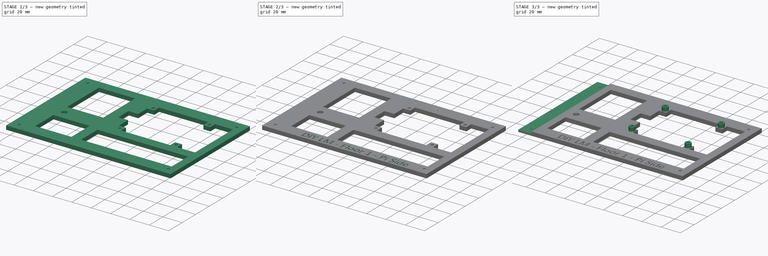
[diagram: build sequence overview — one tinted view per stage of 3, left to right]
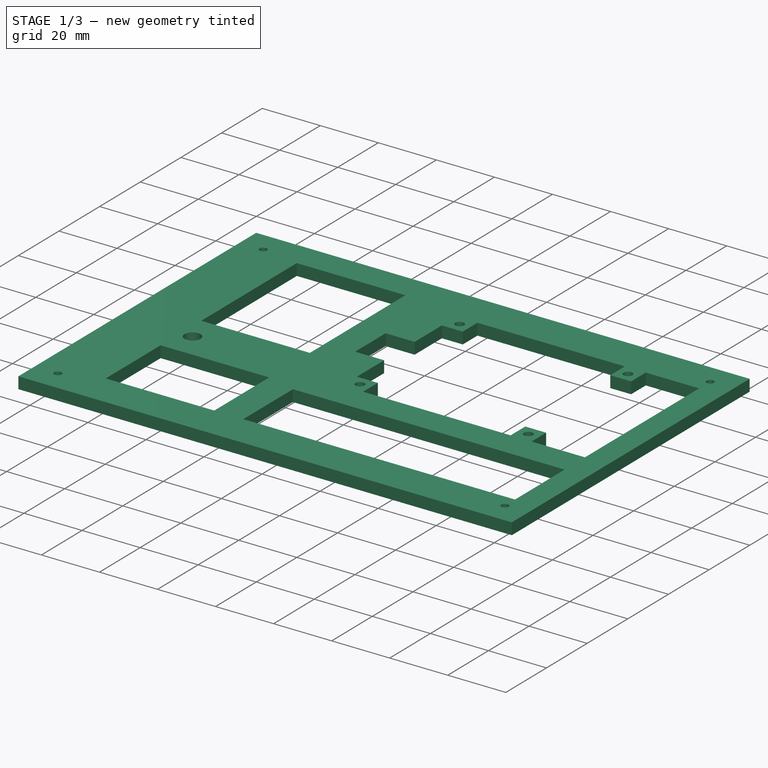
[diagram: stage 1 of 3 — iso view after this stage's code; geometry added in this stage tinted green]
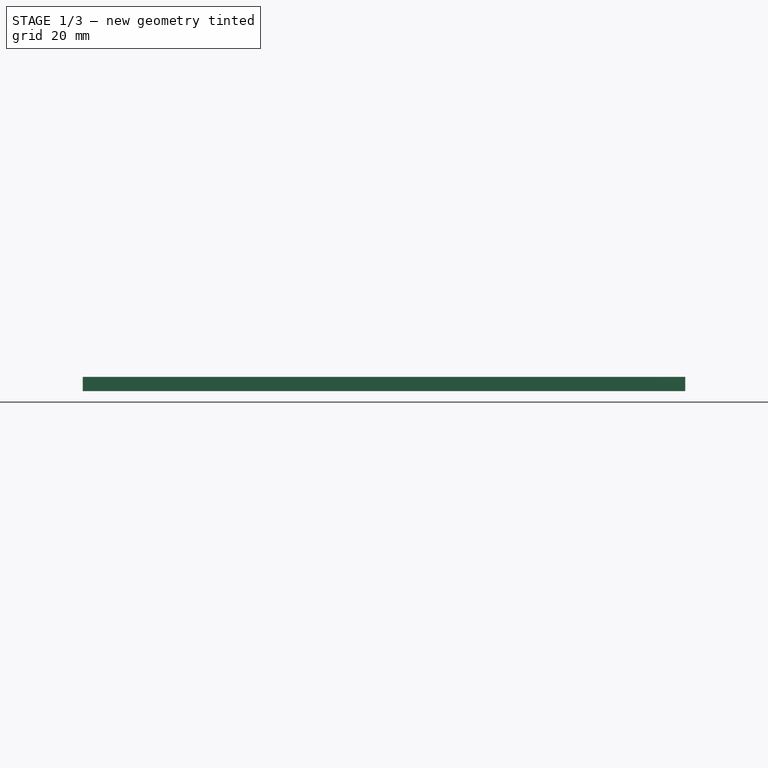
[diagram: stage 1 of 3 — front view after this stage's code; geometry added in this stage tinted green]
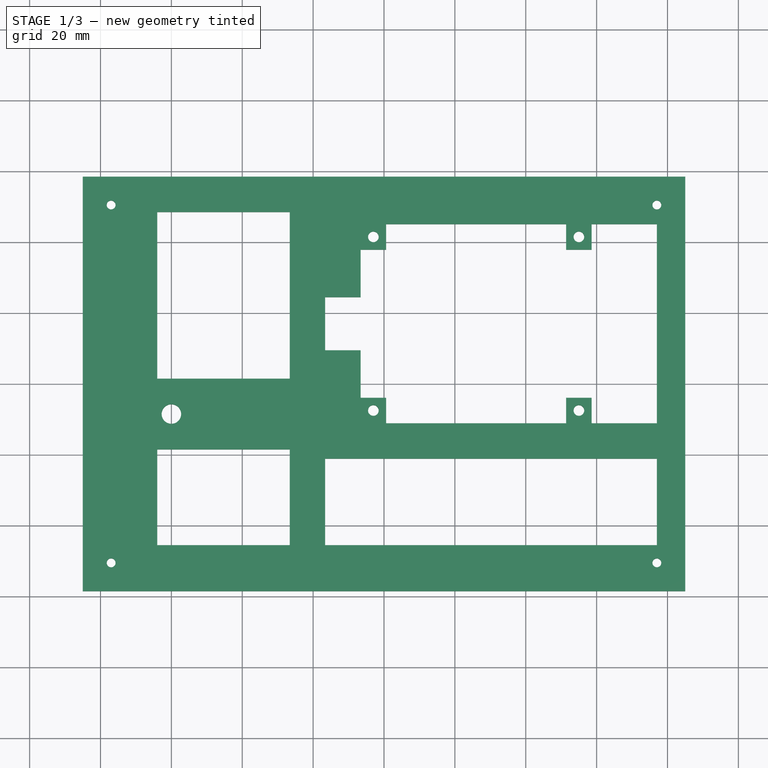
[diagram: stage 1 of 3 — top view after this stage's code; geometry added in this stage tinted green]
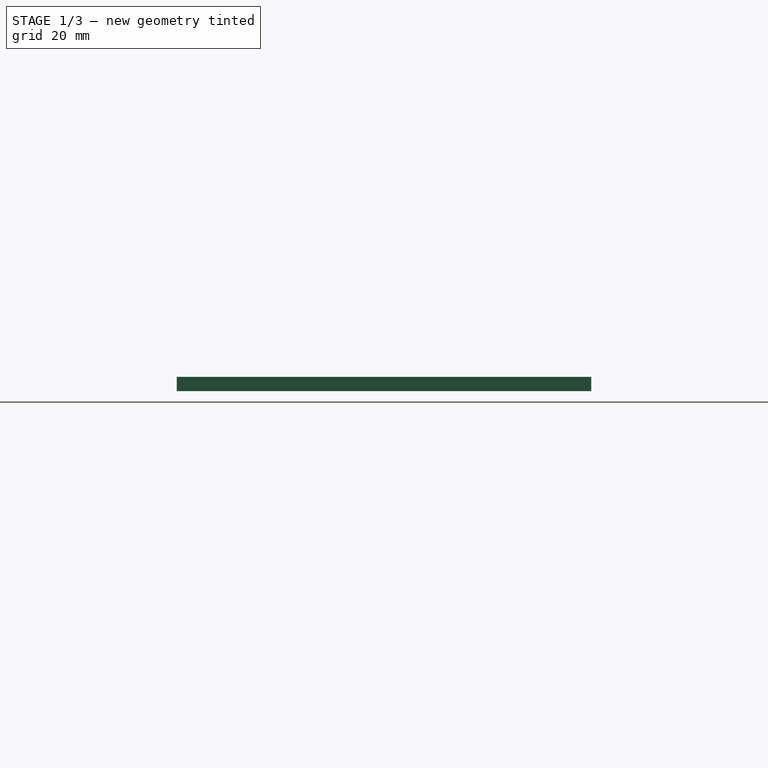
[diagram: stage 1 of 3 — right view after this stage's code; geometry added in this stage tinted green]
FCSTD DOCUMENT  (FreeCAD 1.0R39109 (Git))
Label: Base Layer - Pi Side - Floor
License: All rights reserved
LicenseURL: http://en.wikipedia.org/wiki/All_rights_reserved
objects: Sketcher::SketchObject×4, PartDesign::Pocket×3, PartDesign::Pad×2, Part::Part2DObjectPython×2, App::Link×1, PartDesign::Body×1, App::Part×1
note: 26 computed .brp shape members not serialized (recipe doc carries the construction recipe); baked Part::Feature solids carry a one-line shape summary decoded from their .brp
EXTERNAL_REF file=../Master Document.FCStd obj=Spreadsheet

FEATURE [Sketcher::SketchObject] Sketch
  ArcFitTolerance = 1e-06
  AttachmentSupport = -> [XY_Plane]
  FullyConstrained = true
  MakeInternals = false
  MapMode = 5
  expr: Constraints[10] = 0.5 * <<Monitor Chassis Parameters>>.GSMonitorFloorLength_PiSide
  expr: Constraints[11] = 0.5 * <<Monitor Chassis Parameters>>.GSMonitorFloorWidth_PiSide
  expr: Constraints[8] = <<Monitor Chassis Parameters>>.GSMonitorFloorLength_PiSide
  expr: Constraints[9] = <<Monitor Chassis Parameters>>.GSMonitorFloorWidth_PiSide
  sketch-geometry (4):
    g0: LineSegment StartX=-85 StartY=58.5 StartZ=0 EndX=-85 EndY=-58.5 EndZ=0
    g1: LineSegment StartX=-85 StartY=-58.5 StartZ=0 EndX=85 EndY=-58.5 EndZ=0
    g2: LineSegment StartX=85 StartY=-58.5 StartZ=0 EndX=85 EndY=58.5 EndZ=0
    g3: LineSegment StartX=85 StartY=58.5 StartZ=0 EndX=-85 EndY=58.5 EndZ=0
  constraints (12):
    c: Coincident(g0,g1)
    c: Coincident(g1,g2)
    c: Coincident(g2,g3)
    c: Coincident(g3,g0)
    c: Vertical(g0)
    c: Vertical(g2)
    c: Horizontal(g1)
    c: Horizontal(g3)
    c: DistanceX(g0,g2) = 170
    c: DistanceY(g0,g0) = 117
    c: DistanceX(g0,g-1) = 85
    c: DistanceY(g-1,g0) = 58.5
FEATURE [App::Link] Link  label="Monitor Chassis Parameters"
  LinkedObject = -> <external ../Master Document.FCStd>#Spreadsheet
FEATURE [PartDesign::Pad] Pad  label="Level 1 Floor - Pi Side Pad"
  Direction = (0,0,1)
  Length = 4
  Length2 = 10
  Profile = -> Sketch
  ReferenceAxis = -> Sketch [N_Axis]
  Suppressed = false
  Type = 0
  expr: Length = <<Monitor Chassis Parameters>>.GSMonitorFloorThickness
FEATURE [Sketcher::SketchObject] Sketch001
  ArcFitTolerance = 1e-06
  AttachmentSupport = -> [Pad]
  ExternalGeometry = -> [Sketch,Pad]
  FullyConstrained = true
  MakeInternals = false
  MapMode = 5
  Placement = pos=(0,0,4) rot=(0,0,1;0rad)
  expr: Constraints[0] = <<Monitor Chassis Parameters>>.GSMonitorFloorMountingScrewDiameter
  expr: Constraints[104] = 1.3 * <<Monitor Chassis Parameters>>.GSMonitorFloorRibMinimumWidth
  expr: Constraints[106] = <<Monitor Chassis Parameters>>.GSMonitorFloorRibMinimumWidth
  expr: Constraints[107] = 10
  expr: Constraints[109] = <<Monitor Chassis Parameters>>.GSMonitorFloorPiNearSideOffset
  expr: Constraints[111] = 17
  expr: Constraints[112] = 17
  expr: Constraints[113] = <<Monitor Chassis Parameters>>.GsPi5NetworkSideBoardLength
  expr: Constraints[117] = <<Monitor Chassis Parameters>>.GSMonitorFloorRibMinimumWidth
  expr: Constraints[118] = <<Monitor Chassis Parameters>>.GSMonitorFloorRibMinimumWidth
  expr: Constraints[119] = <<Monitor Chassis Parameters>>.GSMonitorFloorRibMinimumWidth
  expr: Constraints[122] = <<Monitor Chassis Parameters>>.GSMonitorFloorRibMinimumWidth
  expr: Constraints[4] = <<Monitor Chassis Parameters>>.GSMonitorFloorMountHoleEdgeOffset
  expr: Constraints[51] = <<Monitor Chassis Parameters>>.GSMonitorFloorCameraMountHoleDiameter
  expr: Constraints[52] = <<Monitor Chassis Parameters>>.GSMonitorFloorCamera2_MountHoleFrontOffset
  expr: Constraints[5] = <<Monitor Chassis Parameters>>.GSMonitorFloorMountHoleSideOffset
  expr: Constraints[60] = <<Monitor Chassis Parameters>>.GsPi5MountingHoleDiameter
  expr: Constraints[61] = <<Monitor Chassis Parameters>>.GsPi5MountingHoleDiameter
  expr: Constraints[62] = <<Monitor Chassis Parameters>>.GsPi5MountingHoleDiameter
  expr: Constraints[63] = <<Monitor Chassis Parameters>>.GsPi5MountingHoleDiameter
  expr: Constraints[67] = <<Monitor Chassis Parameters>>.GSPi5MountingHoleCenterWidth
  expr: Constraints[6] = <<Monitor Chassis Parameters>>.GSMonitorFloorMountHoleEdgeOffset
  expr: Constraints[76] = <<Monitor Chassis Parameters>>.GSMonitorFloorCamera2MountHoleEdgeOffsetFromCenter
  expr: Constraints[78] = <<Monitor Chassis Parameters>>.GSMonitorFloorRibMinimumWidth * 1.3
  expr: Constraints[79] = <<Monitor Chassis Parameters>>.GSMonitorFloorRibMinimumWidth
  expr: Constraints[7] = <<Monitor Chassis Parameters>>.GSMonitorFloorMountHoleSideOffset
  expr: Constraints[84] = <<Monitor Chassis Parameters>>.GSPi5MountingHoleCenterLength
  expr: Constraints[87] = 1.2 * <<Monitor Chassis Parameters>>.GsPi5MountingHoleDiameter
  expr: Constraints[88] = 1.2 * <<Monitor Chassis Parameters>>.GsPi5MountingHoleDiameter
  expr: Constraints[89] = 1.2 * <<Monitor Chassis Parameters>>.GsPi5MountingHoleDiameter
  expr: Constraints[90] = 1.2 * <<Monitor Chassis Parameters>>.GsPi5MountingHoleDiameter
  expr: Constraints[95] = 1.2 * <<Monitor Chassis Parameters>>.GsPi5MountingHoleDiameter
  expr: Constraints[96] = 1.2 * <<Monitor Chassis Parameters>>.GsPi5MountingHoleDiameter
  expr: Constraints[97] = 1.2 * <<Monitor Chassis Parameters>>.GsPi5MountingHoleDiameter
  expr: Constraints[98] = 1.2 * <<Monitor Chassis Parameters>>.GsPi5MountingHoleDiameter
  sketch-geometry (41):
    g0: Circle CenterX=77 CenterY=50.5 CenterZ=0 NormalX=0 NormalY=0 NormalZ=1 AngleXU=0 Radius=1.25
    g1: Circle CenterX=-77 CenterY=-50.5 CenterZ=0 NormalX=0 NormalY=0 NormalZ=1 AngleXU=0 Radius=1.25
    g2: Circle CenterX=77 CenterY=-50.5 CenterZ=0 NormalX=0 NormalY=0 NormalZ=1 AngleXU=0 Radius=1.25
    g3: Circle CenterX=-77 CenterY=50.5 CenterZ=0 NormalX=0 NormalY=0 NormalZ=1 AngleXU=0 Radius=1.25
    g4: LineSegment StartX=-64 StartY=48.5 StartZ=0 EndX=-64 EndY=1.5 EndZ=0
    g5: LineSegment StartX=-64 StartY=1.5 StartZ=0 EndX=-26.6 EndY=1.5 EndZ=0
    g6: LineSegment StartX=-26.6 StartY=1.5 StartZ=0 EndX=-26.6 EndY=48.5 EndZ=0
    g7: LineSegment StartX=-26.6 StartY=48.5 StartZ=0 EndX=-64 EndY=48.5 EndZ=0
    g8: LineSegment StartX=-26.6 StartY=-45.5 StartZ=0 EndX=-26.6 EndY=-18.5 EndZ=0
    g9: LineSegment StartX=-26.6 StartY=-18.5 StartZ=0 EndX=-64 EndY=-18.5 EndZ=0
    g10: LineSegment StartX=-64 StartY=-18.5 StartZ=0 EndX=-64 EndY=-45.5 EndZ=0
    g11: LineSegment StartX=-64 StartY=-45.5 StartZ=0 EndX=-26.6 EndY=-45.5 EndZ=0
    g12: Circle CenterX=-60 CenterY=-8.5 CenterZ=0 NormalX=0 NormalY=0 NormalZ=1 AngleXU=0 Radius=2.75
    g13: LineSegment StartX=-16.6 StartY=-21.1 StartZ=0 EndX=-16.6 EndY=-45.5 EndZ=0
    g14: LineSegment StartX=-16.6 StartY=-45.5 StartZ=0 EndX=77 EndY=-45.5 EndZ=0
    g15: LineSegment StartX=77 StartY=-45.5 StartZ=0 EndX=77 EndY=-21.1 EndZ=0
    g16: LineSegment StartX=77 StartY=-21.1 StartZ=0 EndX=-16.6 EndY=-21.1 EndZ=0
    g17: LineSegment StartX=77 StartY=-11.1 StartZ=0 EndX=77 EndY=45.1 EndZ=0
    g18: LineSegment StartX=77 StartY=45.1 StartZ=0 EndX=58.6 EndY=45.1 EndZ=0
    g19: LineSegment StartX=58.6 StartY=45.1 StartZ=0 EndX=58.6 EndY=37.9 EndZ=0
    g20: LineSegment StartX=58.6 StartY=37.9 StartZ=0 EndX=51.4 EndY=37.9 EndZ=0
    g21: LineSegment StartX=51.4 StartY=37.9 StartZ=0 EndX=51.4 EndY=45.1 EndZ=0
    g22: LineSegment StartX=51.4 StartY=45.1 StartZ=0 EndX=0.6 EndY=45.1 EndZ=0
    g23: LineSegment StartX=0.6 StartY=45.1 StartZ=0 EndX=0.6 EndY=37.9 EndZ=0
    g24: LineSegment StartX=-6.6 StartY=37.9 StartZ=0 EndX=-6.6 EndY=24.5 EndZ=0
    g25: LineSegment StartX=-6.6 StartY=24.5 StartZ=0 EndX=-16.6 EndY=24.5 EndZ=0
    g26: LineSegment StartX=-16.6 StartY=24.5 StartZ=0 EndX=-16.6 EndY=9.5 EndZ=0
    g27: LineSegment StartX=-16.6 StartY=9.5 StartZ=0 EndX=-6.6 EndY=9.5 EndZ=0
    g28: LineSegment StartX=0.6 StartY=-3.9 StartZ=0 EndX=0.6 EndY=-11.1 EndZ=0
    g29: LineSegment StartX=51.4 StartY=-11.1 StartZ=0 EndX=51.4 EndY=-3.9 EndZ=0
    g30: LineSegment StartX=51.4 StartY=-3.9 StartZ=0 EndX=58.6 EndY=-3.9 EndZ=0
    g31: LineSegment StartX=58.6 StartY=-3.9 StartZ=0 EndX=58.6 EndY=-11.1 EndZ=0
    g32: LineSegment StartX=58.6 StartY=-11.1 StartZ=0 EndX=77 EndY=-11.1 EndZ=0
    g33: LineSegment StartX=-6.6 StartY=37.9 StartZ=0 EndX=0.6 EndY=37.9 EndZ=0
    g34: LineSegment StartX=0.6 StartY=-3.9 StartZ=0 EndX=-6.6 EndY=-3.9 EndZ=0
    g35: LineSegment StartX=-6.6 StartY=-3.9 StartZ=0 EndX=-6.6 EndY=9.5 EndZ=0
    g36: Circle CenterX=-3 CenterY=41.5 CenterZ=0 NormalX=0 NormalY=0 NormalZ=1 AngleXU=0 Radius=1.5
    g37: Circle CenterX=55 CenterY=-7.5 CenterZ=0 NormalX=0 NormalY=0 NormalZ=1 AngleXU=0 Radius=1.5
    g38: Circle CenterX=-3 CenterY=-7.5 CenterZ=0 NormalX=0 NormalY=0 NormalZ=1 AngleXU=0 Radius=1.5
    g39: Circle CenterX=55 CenterY=41.5 CenterZ=0 NormalX=0 NormalY=0 NormalZ=1 AngleXU=0 Radius=1.5
    g40: LineSegment StartX=0.6 StartY=-11.1 StartZ=0 EndX=51.4 EndY=-11.1 EndZ=0
  constraints (123):
    c: Diameter(g0) = 2.5
    c: Diameter(g1) = 2.5
    c: Diameter(g2) = 2.5
    c: Diameter(g3) = 2.5
    c: DistanceX(g-3,g3) = 8
    c: DistanceY(g3,g-3) = 8
    c: DistanceX(g2,g-4) = 8
    c: DistanceY(g-4,g2) = 8
    c: Vertical(g1,g3)
    c: Horizontal(g1,g2)
    c: Vertical(g2,g0)
    c: Horizontal(g0,g3)
    c: Coincident(g4,g5)
    c: Coincident(g5,g6)
    c: Coincident(g6,g7)
    c: Coincident(g7,g4)
    c: Vertical(g4)
    c: Vertical(g6)
    c: Horizontal(g5)
    c: Horizontal(g7)
    c: Coincident(g8,g9)
    c: Coincident(g9,g10)
    c: Coincident(g10,g11)
    c: Coincident(g11,g8)
    c: Vertical(g8)
    c: Vertical(g10)
    c: Horizontal(g9)
    c: Horizontal(g11)
    c: Coincident(g13,g14)
    c: Coincident(g14,g15)
    c: Coincident(g15,g16)
    c: Coincident(g16,g13)
    c: Vertical(g15)
    c: Horizontal(g14)
    c: Horizontal(g16)
    c: Vertical(g17)
    c: Coincident(g18,g17)
    c: Horizontal(g18)
    c: Vertical(g19)
    c: Horizontal(g20)
    c: Coincident(g21,g20)
    c: Vertical(g21)
    c: Horizontal(g22)
    c: Coincident(g23,g22)
    c: Vertical(g23)
    c: Vertical(g24)
    c: Horizontal(g25)
    c: Horizontal(g27)
    c: Vertical(g28)
    c: Vertical(g31)
    c: Coincident(g32,g17)
    c: Diameter(g12) = 5.5
    c: DistanceY(g-5,g12) = 50
    c: Coincident(g33,g24)
    c: Coincident(g33,g23)
    c: Horizontal(g33)
    c: Coincident(g34,g28)
    c: Coincident(g35,g34)
    c: Coincident(g35,g27)
    c: Vertical(g35)
    c: Diameter(g36) = 3
    c: Diameter(g37) = 3
    c: Diameter(g38) = 3
    c: Diameter(g39) = 3
    c: Horizontal(g36,g39)
    c: Vertical(g39,g37)
    c: Vertical(g38,g36)
    c: DistanceY(g37,g39) = 49
    c: Vertical(g17,g0)
    c: Horizontal(g8,g13)
    c: Coincident(g25,g24)
    c: Coincident(g19,g18)
    c: Coincident(g30,g29)
    c: Coincident(g31,g30)
    c: Coincident(g20,g19)
    c: Coincident(g22,g21)
    c: DistanceX(g-5,g12) = 25
    c: Vertical(g4,g9)
    c: DistanceX(g1,g10) = 13
    c: DistanceX(g8,g13) = 10
    c: Coincident(g31,g32)
    c: Coincident(g40,g28)
    c: Coincident(g40,g29)
    c: Horizontal(g40)
    c: DistanceX(g36,g39) = 58
    c: Vertical(g29)
    c: Horizontal(g30)
    c: DistanceX(g39,g18) = 3.6
    c: DistanceY(g39,g18) = 3.6
    c: DistanceY(g19,g39) = 3.6
    c: DistanceX(g21,g39) = 3.6
    c: Vertical(g19,g30)
    c: Vertical(g29,g20)
    c: Horizontal(g34)
    c: Vertical(g23,g28)
    c: DistanceY(g38,g34) = 3.6
    c: DistanceX(g34,g38) = 3.6
    c: DistanceX(g38,g28) = 3.6
    c: DistanceY(g28,g38) = 3.6
    c: Horizontal(g31,g29)
    c: Horizontal(g32)
    c: Horizontal(g28,g29)
    c: Horizontal(g37,g38)
    c: Horizontal(g23,g20)
    c: DistanceY(g-5,g10) = 13
    c: Vertical(g15,g17)
    c: DistanceY(g15,g17) = 10
    c: DistanceX(g25,g24) = 10
    c: Vertical(g27,g24)
    c: DistanceY(g-4,g37) = 51
    c: Horizontal(g18,g21)
    c: DistanceY(g38,g27) = 17
    c: DistanceY(g24,g36) = 17
    c: DistanceX(g39,g17) = 22
    c: Vertical(g26)
    c: Coincident(g26,g27)
    c: Coincident(g26,g25)
    c: DistanceY(g4,g-3) = 10
    c: DistanceY(g12,g4) = 10
    c: DistanceX(g6,g25) = 10
    c: Vertical(g13)
    c: Vertical(g13,g26)
    c: DistanceY(g9,g12) = 10
FEATURE [PartDesign::Pocket] Pocket  label="Floor Holes"
  BaseFeature = -> Pad
  Direction = (0,0,-1)
  Length = 4
  Length2 = 5
  Profile = -> Sketch001
  ReferenceAxis = -> Sketch001 [N_Axis]
  Suppressed = false
  Type = 0
  expr: Length = <<Monitor Chassis Parameters>>.GSCamWallThickness
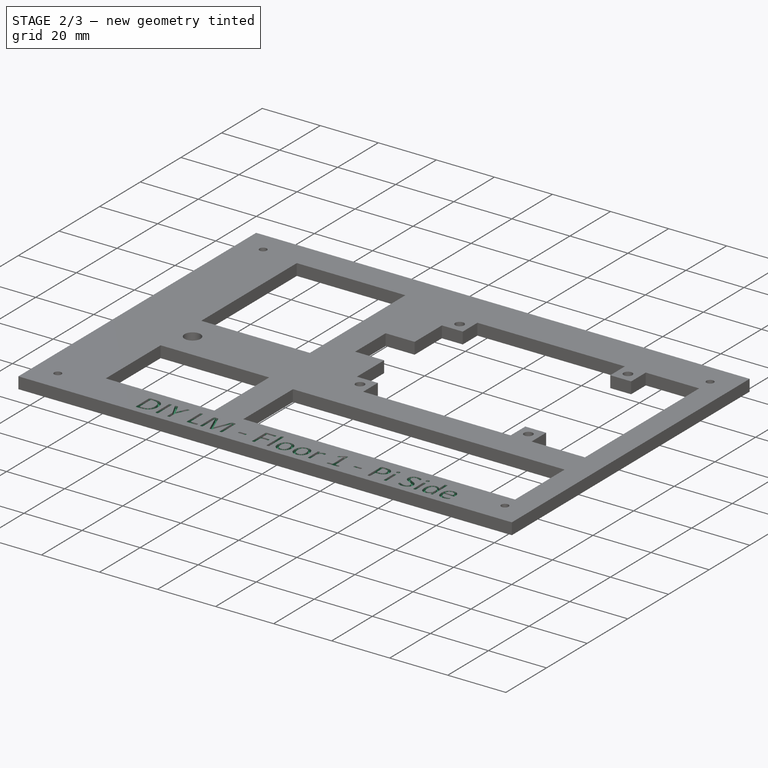
[diagram: stage 2 of 3 — iso view after this stage's code; geometry added in this stage tinted green]
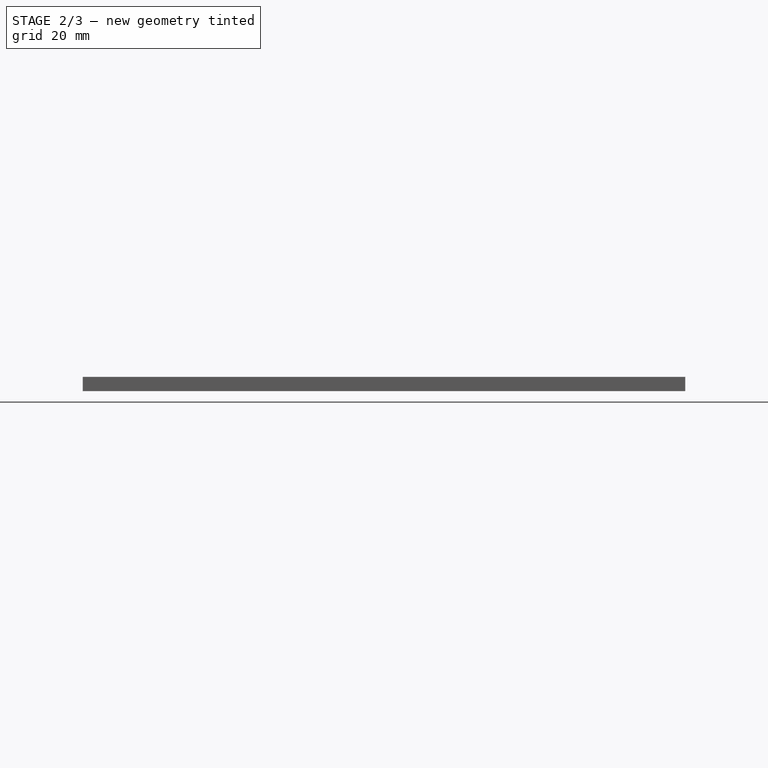
[diagram: stage 2 of 3 — front view after this stage's code; geometry added in this stage tinted green]
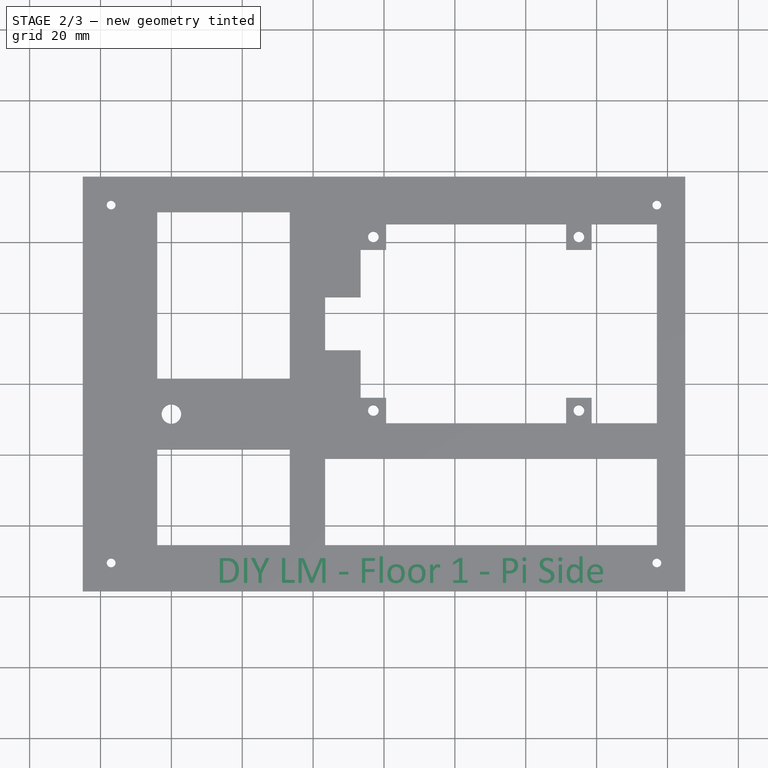
[diagram: stage 2 of 3 — top view after this stage's code; geometry added in this stage tinted green]
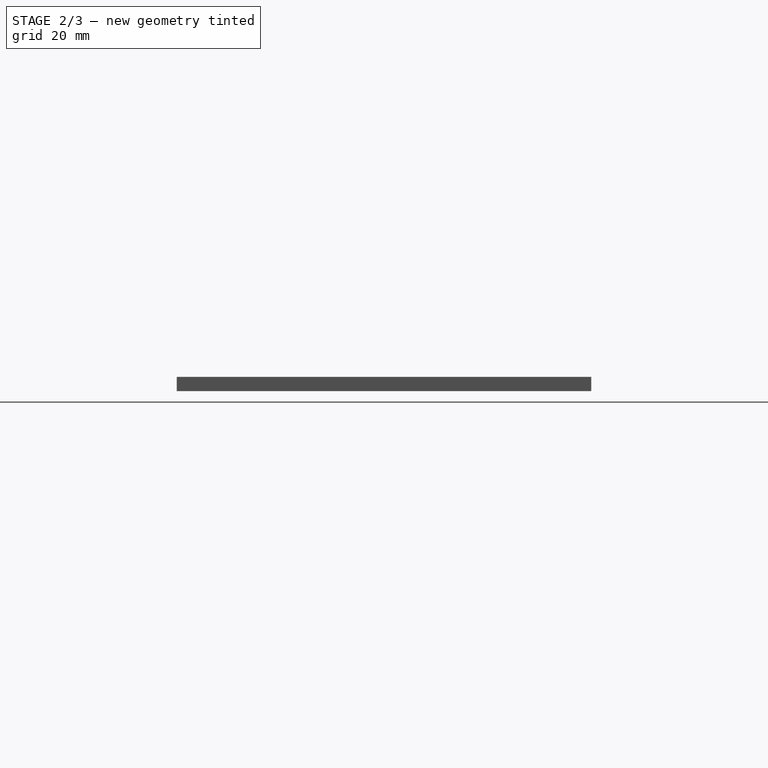
[diagram: stage 2 of 3 — right view after this stage's code; geometry added in this stage tinted green]
FEATURE [Part::Part2DObjectPython] ShapeString  # Draft 2D object (typed FeaturePython)
  FontFile = <path>
  Fuse = false
  Justification = 6
  JustificationReference = 0
  KeepLeftMargin = false
  MakeFace = true
  ObliqueAngle = 0
  Placement = pos=(-46.33,-56.17,4) rot=(0,0,1;0rad)
  ScaleToSize = true
  Size = 7
  String = DIY LM - Floor 1 - Pi Side
  Tracking = 0
FEATURE [PartDesign::Pocket] Pocket001  label="ID Text Pocket"
  BaseFeature = -> Pocket
  Direction = (0,0,-1)
  Length = 1
  Length2 = 5
  Profile = -> ShapeString
  ReferenceAxis = -> ShapeString [N_Axis]
  Suppressed = false
  Type = 0
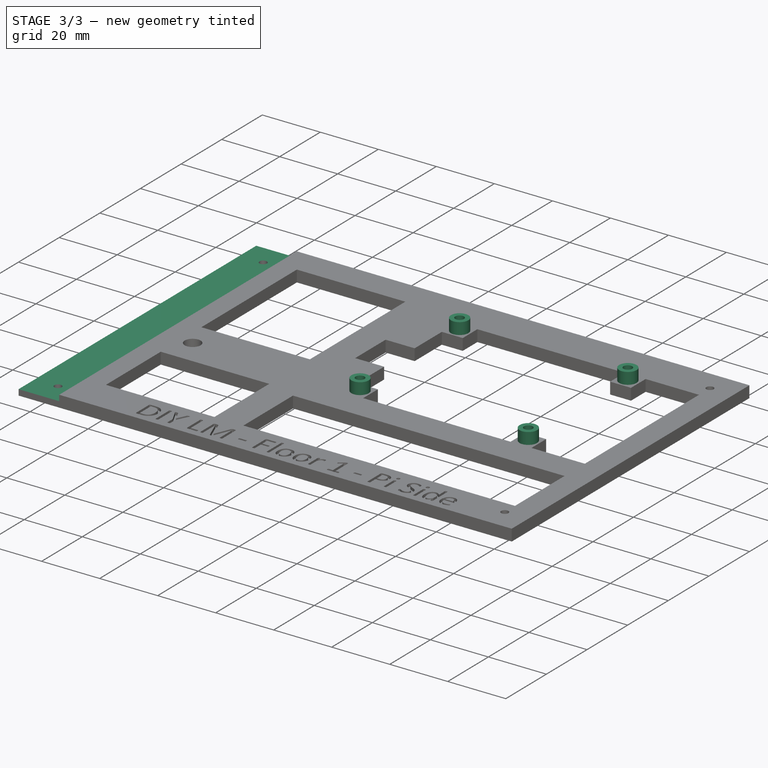
[diagram: stage 3 of 3 — iso view after this stage's code; geometry added in this stage tinted green]
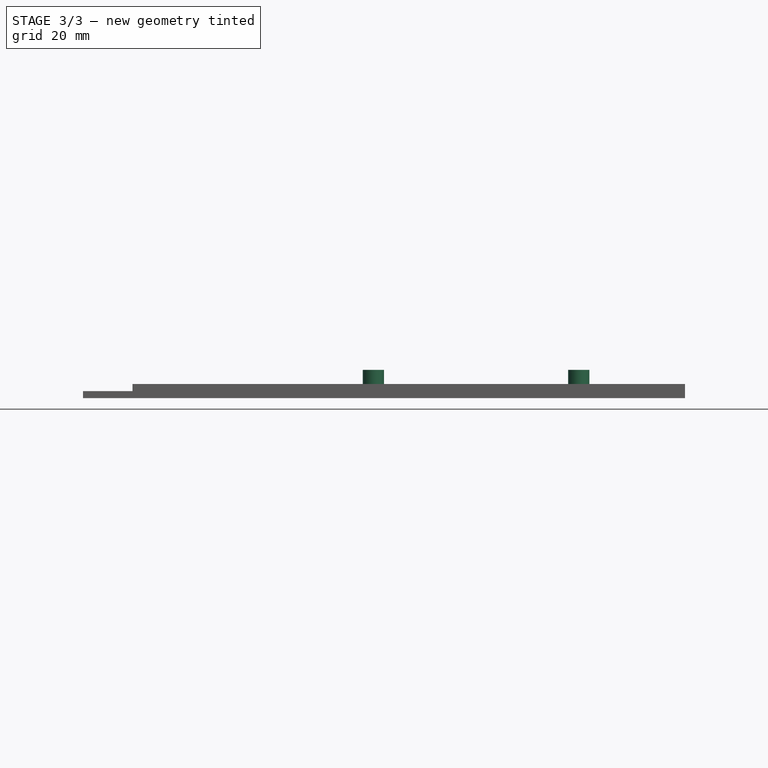
[diagram: stage 3 of 3 — front view after this stage's code; geometry added in this stage tinted green]
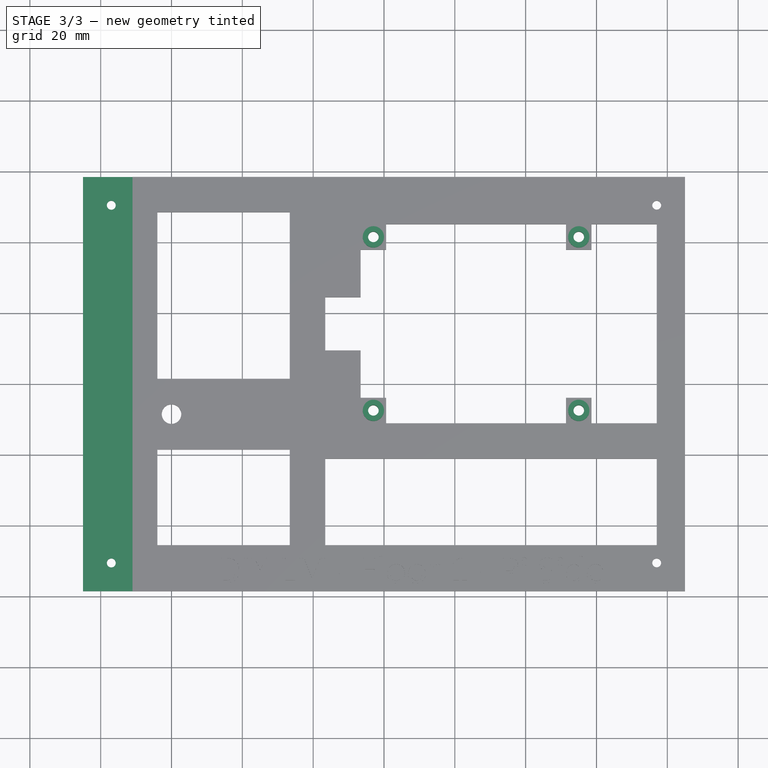
[diagram: stage 3 of 3 — top view after this stage's code; geometry added in this stage tinted green]
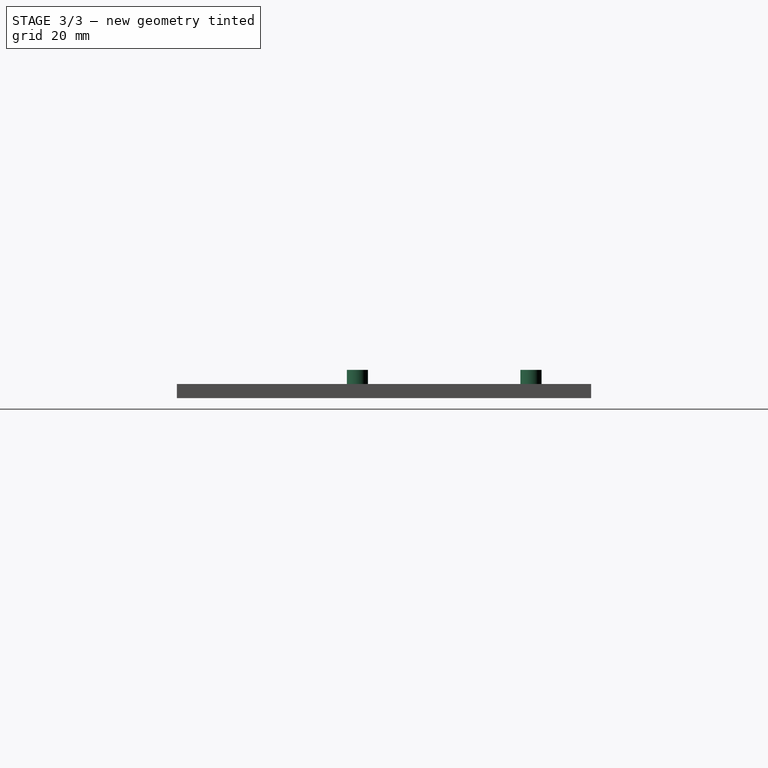
[diagram: stage 3 of 3 — right view after this stage's code; geometry added in this stage tinted green]
FEATURE [Sketcher::SketchObject] Sketch002
  ArcFitTolerance = 1e-06
  AttachmentSupport = -> [Pocket001]
  FullyConstrained = true
  MakeInternals = false
  MapMode = 5
  Placement = pos=(0,-58.5,0) rot=(1,0,0;1.5708rad)
  expr: Constraints[10] = 0.5 * <<Monitor Chassis Parameters>>.GSMonitorFloorLength_PiSide
  expr: Constraints[11] = <<Monitor Chassis Parameters>>.GSCamPlateThickness / 2
  expr: Constraints[8] = <<Monitor Chassis Parameters>>.GSMonitorFloorJointOverlap
  expr: Constraints[9] = <<Monitor Chassis Parameters>>.GSCamPlateThickness / 2
  sketch-geometry (4):
    g0: LineSegment StartX=-85 StartY=4 StartZ=0 EndX=-85 EndY=2 EndZ=0
    g1: LineSegment StartX=-85 StartY=2 StartZ=0 EndX=-71 EndY=2 EndZ=0
    g2: LineSegment StartX=-71 StartY=2 StartZ=0 EndX=-71 EndY=4 EndZ=0
    g3: LineSegment StartX=-71 StartY=4 StartZ=0 EndX=-85 EndY=4 EndZ=0
  constraints (12):
    c: Coincident(g0,g1)
    c: Coincident(g1,g2)
    c: Coincident(g2,g3)
    c: Coincident(g3,g0)
    c: Vertical(g0)
    c: Vertical(g2)
    c: Horizontal(g1)
    c: Horizontal(g3)
    c: DistanceX(g0,g2) = 14
    c: DistanceY(g1,g2) = 2
    c: DistanceX(g0,g-1) = 85
    c: DistanceY(g-1,g0) = 2
FEATURE [PartDesign::Pocket] Pocket002  label="Lap Joint Overlap Cutout"
  BaseFeature = -> Pocket001
  Direction = (0,1,-2e-16)
  Length = 117
  Length2 = 5
  Profile = -> Sketch002
  ReferenceAxis = -> Sketch002 [N_Axis]
  Suppressed = false
  Type = 0
  expr: Length = <<Monitor Chassis Parameters>>.GSMonitorFloorWidth_PiSide
FEATURE [Sketcher::SketchObject] Sketch003
  ArcFitTolerance = 1e-06
  AttachmentSupport = -> [Pocket002]
  ExternalGeometry = -> [Pocket002]
  FullyConstrained = true
  MakeInternals = false
  MapMode = 5
  Placement = pos=(0,0,4) rot=(0,0,1;0rad)
  expr: Constraints[11] = <<Monitor Chassis Parameters>>.GsPi5MountingHoleDiameter
  expr: Constraints[13] = <<Monitor Chassis Parameters>>.GsPi5MountingHoleDiameter
  expr: Constraints[1] = 2 * <<Monitor Chassis Parameters>>.GsPi5MountingHoleDiameter
  expr: Constraints[3] = <<Monitor Chassis Parameters>>.GsPi5MountingHoleDiameter
  expr: Constraints[5] = 2 * <<Monitor Chassis Parameters>>.GsPi5MountingHoleDiameter
  expr: Constraints[6] = 2 * <<Monitor Chassis Parameters>>.GsPi5MountingHoleDiameter
  expr: Constraints[7] = 2 * <<Monitor Chassis Parameters>>.GsPi5MountingHoleDiameter
  expr: Constraints[9] = <<Monitor Chassis Parameters>>.GsPi5MountingHoleDiameter
  sketch-geometry (8):
    g0: Circle CenterX=-3 CenterY=41.5 CenterZ=0 NormalX=0 NormalY=0 NormalZ=1 AngleXU=0 Radius=3
    g1: Circle CenterX=-3 CenterY=41.5 CenterZ=0 NormalX=0 NormalY=0 NormalZ=1 AngleXU=0 Radius=1.5
    g2: Circle CenterX=55 CenterY=-7.5 CenterZ=0 NormalX=0 NormalY=0 NormalZ=1 AngleXU=0 Radius=3
    g3: Circle CenterX=55 CenterY=41.5 CenterZ=0 NormalX=0 NormalY=0 NormalZ=1 AngleXU=0 Radius=3
    g4: Circle CenterX=-3 CenterY=-7.5 CenterZ=0 NormalX=0 NormalY=0 NormalZ=1 AngleXU=0 Radius=3
    g5: Circle CenterX=55 CenterY=-7.5 CenterZ=0 NormalX=0 NormalY=0 NormalZ=1 AngleXU=0 Radius=1.5
    g6: Circle CenterX=-3 CenterY=-7.5 CenterZ=0 NormalX=0 NormalY=0 NormalZ=1 AngleXU=0 Radius=1.5
    g7: Circle CenterX=55 CenterY=41.5 CenterZ=0 NormalX=0 NormalY=0 NormalZ=1 AngleXU=0 Radius=1.5
  constraints (18):
    c: Coincident(g0,g-3)
    c: Diameter(g0) = 6
    c: Coincident(g1,g0)
    c: Diameter(g1) = 3
    c: Coincident(g2,g-4)
    c: Diameter(g2) = 6
    c: Diameter(g3) = 6
    c: Diameter(g4) = 6
    c: Coincident(g5,g2)
    c: Diameter(g5) = 3
    c: Coincident(g6,g4)
    c: Diameter(g6) = 3
    c: Coincident(g7,g3)
    c: Diameter(g7) = 3
    c: Horizontal(g0,g3)
    c: Vertical(g3,g2)
    c: Horizontal(g2,g4)
    c: Vertical(g4,g0)
FEATURE [PartDesign::Pad] Pad001  label="Pi Risers Pad"
  BaseFeature = -> Pocket002
  Direction = (0,0,1)
  Length = 4
  Length2 = 10
  Profile = -> Sketch003
  ReferenceAxis = -> Sketch003 [N_Axis]
  Suppressed = false
  Type = 0
  expr: Length = <<Monitor Chassis Parameters>>.GSPi5MountingRiserHeight
FEATURE [PartDesign::Body] Body  label="Base Layer - Pi Side - Lower Floor Body"
  AllowCompound = false
  Group = -> [Sketch,Sketch001,Pad,Pocket,ShapeString,Pocket001,Sketch002,Pocket002,Sketch003,Pad001]
  Origin = -> Origin
  Tip = -> Pad001
FEATURE [App::Part] Part  label="Base Layer - Pi Side - Lower Floor Object"
  Group = -> [Body]
  Origin = -> Origin001
FEATURE [Part::Part2DObjectPython] ShapeString001  # Draft 2D object (typed FeaturePython)
  FontFile = <path>
  Fuse = false
  Justification = 6
  JustificationReference = 0
  KeepLeftMargin = false
  MakeFace = true
  ObliqueAngle = 0
  Placement = pos=(-46.33,-56.17,4) rot=(0,0,1;0rad)
  ScaleToSize = true
  Size = 7
  String = DIY LM - Floor 1 - Pi Side
  Tracking = 0
note: 2 file-system paths scrubbed to <path> (originals preserved in the JSON sidecar)
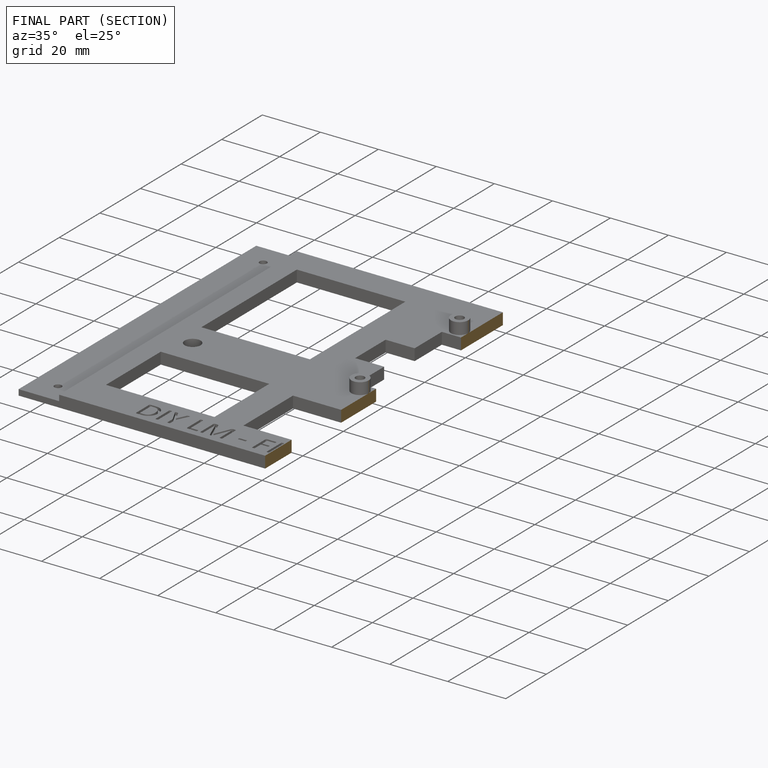
[diagram: finished part — half-section view (interior)]
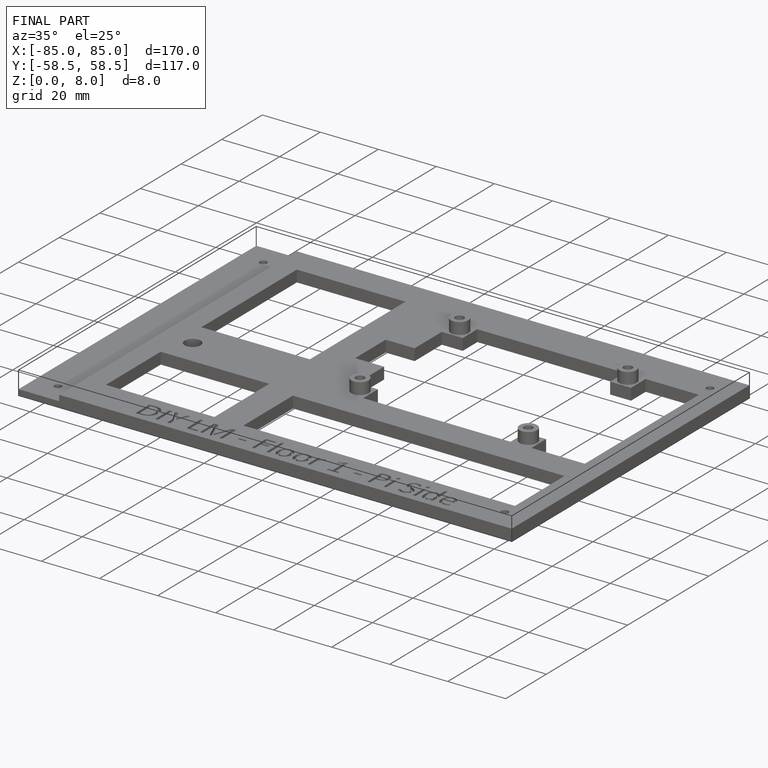
[diagram: finished part — iso view with bounding-box wireframe]
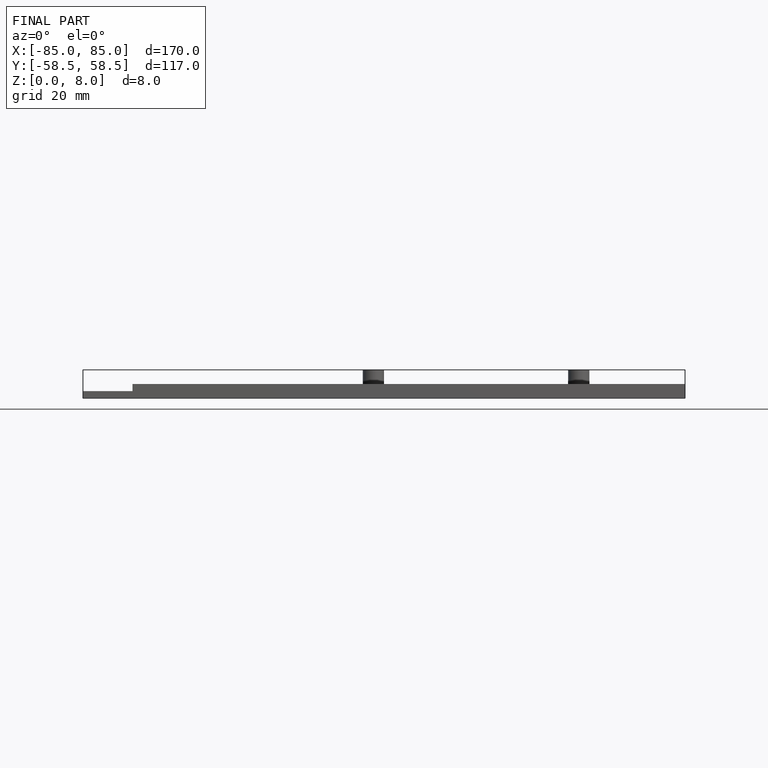
[diagram: finished part — front view with bounding-box wireframe]
